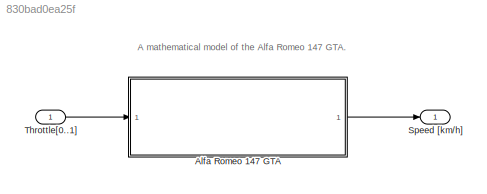
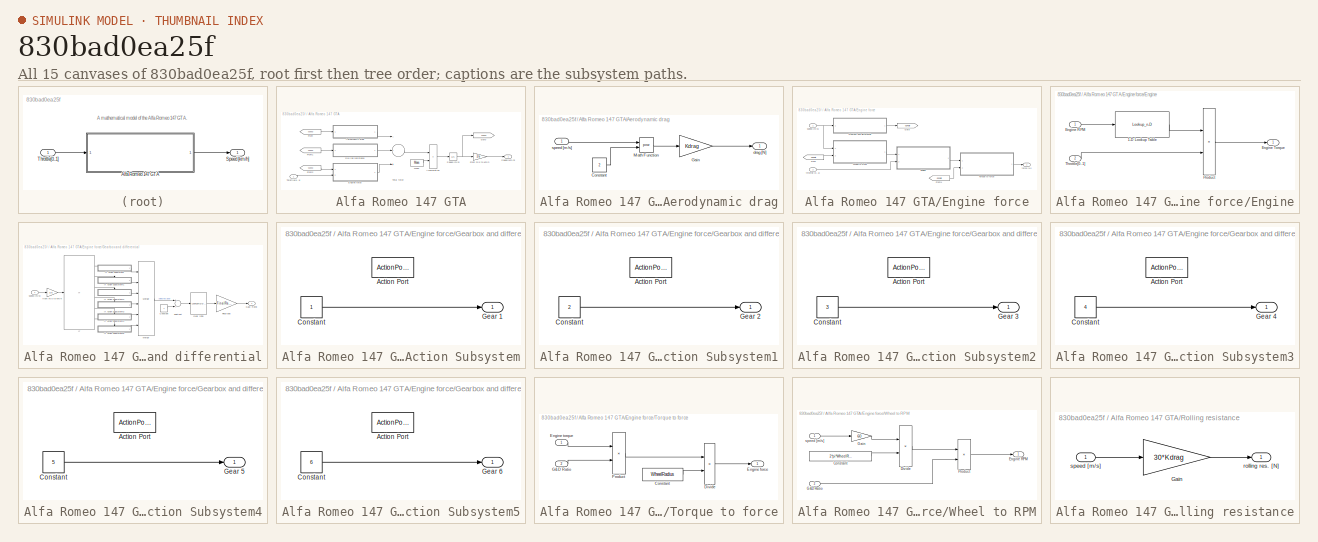
[diagram: thumbnail index - all 15 canvases of the model, root first then tree order]
MODEL slx_830bad0ea25f
KIND model
CONFIG PreLoadFcn = load('alfa147gta.mat')
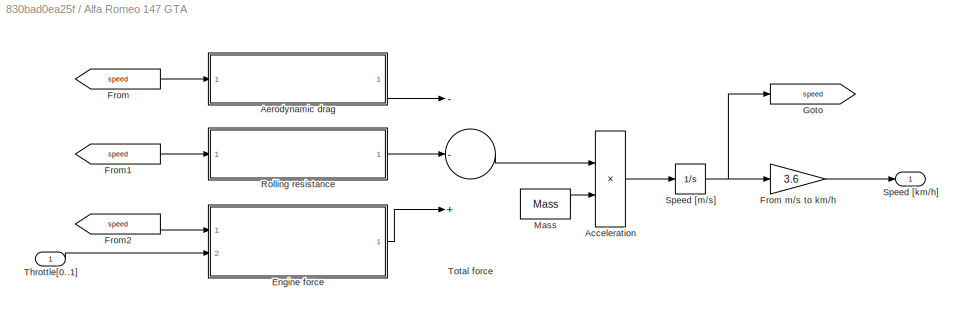
BLOCK [SubSystem] Alfa Romeo 147 GTA
  FunctionWithSeparateData = off
  MaskHideContents = off
  MinAlgLoopOccurrences = off
  Opaque = off
  Ports = [1, 1]
  PropExecContextOutsideSubsystem = off
  RTWSystemCode = Auto
  RequestExecContextInheritance = off
BLOCK [Product] Alfa Romeo 147 GTA/Acceleration
  InputSameDT = off
  Inputs = */
  OutDataTypeStr = Inherit: Inherit via internal rule
  Ports = [2, 1]
  RndMeth = Floor
  SaturateOnIntegerOverflow = off
BLOCK [SubSystem] Alfa Romeo 147 GTA/Aerodynamic drag
  FunctionWithSeparateData = off
  MaskHideContents = off
  MinAlgLoopOccurrences = off
  Opaque = off
  Ports = [1, 1]
  PropExecContextOutsideSubsystem = off
  RTWSystemCode = Auto
  RequestExecContextInheritance = off
BLOCK [Constant] Alfa Romeo 147 GTA/Aerodynamic drag/Constant
  Value = 2
BLOCK [Gain] Alfa Romeo 147 GTA/Aerodynamic drag/Gain
  Gain = Kdrag
  OutDataTypeStr = Inherit: Inherit via internal rule
  ParamDataTypeStr = Inherit: Inherit via internal rule
  SaturateOnIntegerOverflow = off
BLOCK [Math] Alfa Romeo 147 GTA/Aerodynamic drag/Math Function
  Operator = pow
  Ports = [2, 1]
BLOCK [Outport] Alfa Romeo 147 GTA/Aerodynamic drag/drag [N]
  IconDisplay = Port number
BLOCK [Inport] Alfa Romeo 147 GTA/Aerodynamic drag/speed [m//s]
  IconDisplay = Port number
BLOCK [SubSystem] Alfa Romeo 147 GTA/Engine force
  FunctionWithSeparateData = off
  MaskHideContents = off
  MinAlgLoopOccurrences = off
  Opaque = off
  Ports = [2, 1]
  PropExecContextOutsideSubsystem = off
  RTWSystemCode = Auto
  RequestExecContextInheritance = off
BLOCK [SubSystem] Alfa Romeo 147 GTA/Engine force/Engine
  FunctionWithSeparateData = off
  MaskHideContents = off
  MinAlgLoopOccurrences = off
  Opaque = off
  Ports = [2, 1]
  PropExecContextOutsideSubsystem = off
  RTWSystemCode = Auto
  RequestExecContextInheritance = off
BLOCK [Lookup_n-D] Alfa Romeo 147 GTA/Engine force/Engine/1-D Lookup Table
  BreakpointsForDimension1 = EngineRPM
  InterpMethod = Cubic spline
  NumberOfTableDimensions = 1
  Ports = [1, 1]
  RndMeth = Simplest
  Table = EngineTRQ
BLOCK [Inport] Alfa Romeo 147 GTA/Engine force/Engine/Engine RPM
  IconDisplay = Port number
BLOCK [Outport] Alfa Romeo 147 GTA/Engine force/Engine/Engine Torque
  IconDisplay = Port number
BLOCK [Product] Alfa Romeo 147 GTA/Engine force/Engine/Product
  InputSameDT = off
  OutDataTypeStr = Inherit: Inherit via internal rule
  Ports = [2, 1]
  RndMeth = Floor
  SaturateOnIntegerOverflow = off
BLOCK [Inport] Alfa Romeo 147 GTA/Engine force/Engine/Throttle[0..1]
  IconDisplay = Port number
  Port = 2
BLOCK [From] Alfa Romeo 147 GTA/Engine force/From
  GotoTag = GDRatio
BLOCK [From] Alfa Romeo 147 GTA/Engine force/From1
  GotoTag = GDRatio
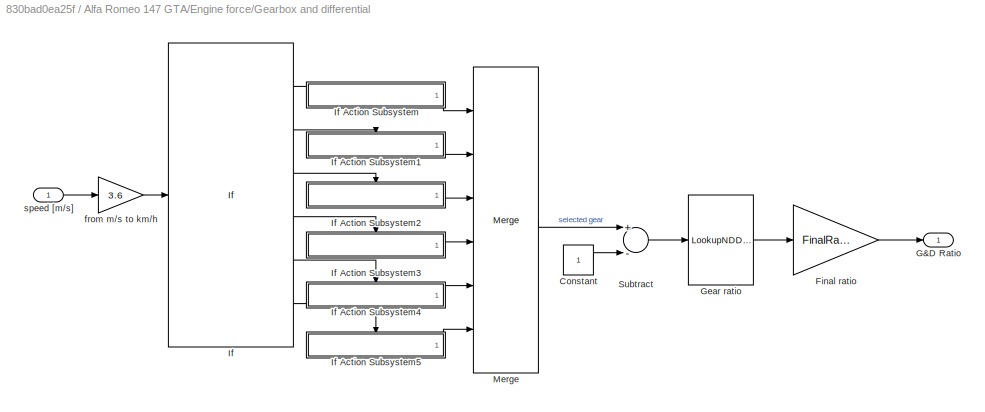
BLOCK [SubSystem] Alfa Romeo 147 GTA/Engine force/Gearbox and differential
  FunctionWithSeparateData = off
  MaskHideContents = off
  MinAlgLoopOccurrences = off
  Opaque = off
  Ports = [1, 1]
  PropExecContextOutsideSubsystem = off
  RTWSystemCode = Auto
  RequestExecContextInheritance = off
BLOCK [Constant] Alfa Romeo 147 GTA/Engine force/Gearbox and differential/Constant
BLOCK [Gain] Alfa Romeo 147 GTA/Engine force/Gearbox and differential/Final ratio
  Gain = FinalRatio
  OutDataTypeStr = Inherit: Inherit via internal rule
  ParamDataTypeStr = Inherit: Inherit via internal rule
  SaturateOnIntegerOverflow = off
BLOCK [Outport] Alfa Romeo 147 GTA/Engine force/Gearbox and differential/G&D Ratio
  IconDisplay = Port number
BLOCK [LookupNDDirect] Alfa Romeo 147 GTA/Engine force/Gearbox and differential/Gear ratio
  NumberOfTableDimensions = 1
  Ports = [1, 1]
  Table = GearRatio
BLOCK [If] Alfa Romeo 147 GTA/Engine force/Gearbox and differential/If
  ElseIfExpressions = u1 < 60, u1 < 86, u1 < 110, u1 < 130
  IfExpression = u1 < 39
  Ports = [1, 6]
BLOCK [SubSystem] Alfa Romeo 147 GTA/Engine force/Gearbox and differential/If Action Subsystem
  FunctionWithSeparateData = off
  MaskHideContents = off
  MinAlgLoopOccurrences = off
  Opaque = off
  Ports = [0, 1, 0, 0, 0, 0, 0, 1]
  PropExecContextOutsideSubsystem = off
  RTWSystemCode = Auto
  RequestExecContextInheritance = off
  TreatAsAtomicUnit = on
BLOCK [ActionPort] Alfa Romeo 147 GTA/Engine force/Gearbox and differential/If Action Subsystem/Action Port
  ActionType = then
BLOCK [Constant] Alfa Romeo 147 GTA/Engine force/Gearbox and differential/If Action Subsystem/Constant
BLOCK [Outport] Alfa Romeo 147 GTA/Engine force/Gearbox and differential/If Action Subsystem/Gear 1
  IconDisplay = Port number
  InitialOutput = 1
BLOCK [SubSystem] Alfa Romeo 147 GTA/Engine force/Gearbox and differential/If Action Subsystem1
  FunctionWithSeparateData = off
  MaskHideContents = off
  MinAlgLoopOccurrences = off
  Opaque = off
  Ports = [0, 1, 0, 0, 0, 0, 0, 1]
  PropExecContextOutsideSubsystem = off
  RTWSystemCode = Auto
  RequestExecContextInheritance = off
  TreatAsAtomicUnit = on
BLOCK [ActionPort] Alfa Romeo 147 GTA/Engine force/Gearbox and differential/If Action Subsystem1/Action Port
  ActionType = elseif
BLOCK [Constant] Alfa Romeo 147 GTA/Engine force/Gearbox and differential/If Action Subsystem1/Constant
  Value = 2
BLOCK [Outport] Alfa Romeo 147 GTA/Engine force/Gearbox and differential/If Action Subsystem1/Gear 2
  IconDisplay = Port number
  InitialOutput = 2
BLOCK [SubSystem] Alfa Romeo 147 GTA/Engine force/Gearbox and differential/If Action Subsystem2
  FunctionWithSeparateData = off
  MaskHideContents = off
  MinAlgLoopOccurrences = off
  Opaque = off
  Ports = [0, 1, 0, 0, 0, 0, 0, 1]
  PropExecContextOutsideSubsystem = off
  RTWSystemCode = Auto
  RequestExecContextInheritance = off
  TreatAsAtomicUnit = on
BLOCK [ActionPort] Alfa Romeo 147 GTA/Engine force/Gearbox and differential/If Action Subsystem2/Action Port
  ActionType = elseif
BLOCK [Constant] Alfa Romeo 147 GTA/Engine force/Gearbox and differential/If Action Subsystem2/Constant
  Value = 3
BLOCK [Outport] Alfa Romeo 147 GTA/Engine force/Gearbox and differential/If Action Subsystem2/Gear 3
  IconDisplay = Port number
  InitialOutput = 3
BLOCK [SubSystem] Alfa Romeo 147 GTA/Engine force/Gearbox and differential/If Action Subsystem3
  FunctionWithSeparateData = off
  MaskHideContents = off
  MinAlgLoopOccurrences = off
  Opaque = off
  Ports = [0, 1, 0, 0, 0, 0, 0, 1]
  PropExecContextOutsideSubsystem = off
  RTWSystemCode = Auto
  RequestExecContextInheritance = off
  TreatAsAtomicUnit = on
BLOCK [ActionPort] Alfa Romeo 147 GTA/Engine force/Gearbox and differential/If Action Subsystem3/Action Port
  ActionType = elseif
BLOCK [Constant] Alfa Romeo 147 GTA/Engine force/Gearbox and differential/If Action Subsystem3/Constant
  Value = 4
BLOCK [Outport] Alfa Romeo 147 GTA/Engine force/Gearbox and differential/If Action Subsystem3/Gear 4
  IconDisplay = Port number
  InitialOutput = 4
BLOCK [SubSystem] Alfa Romeo 147 GTA/Engine force/Gearbox and differential/If Action Subsystem4
  FunctionWithSeparateData = off
  MaskHideContents = off
  MinAlgLoopOccurrences = off
  Opaque = off
  Ports = [0, 1, 0, 0, 0, 0, 0, 1]
  PropExecContextOutsideSubsystem = off
  RTWSystemCode = Auto
  RequestExecContextInheritance = off
  TreatAsAtomicUnit = on
BLOCK [ActionPort] Alfa Romeo 147 GTA/Engine force/Gearbox and differential/If Action Subsystem4/Action Port
  ActionType = elseif
BLOCK [Constant] Alfa Romeo 147 GTA/Engine force/Gearbox and differential/If Action Subsystem4/Constant
  Value = 5
BLOCK [Outport] Alfa Romeo 147 GTA/Engine force/Gearbox and differential/If Action Subsystem4/Gear 5
  IconDisplay = Port number
  InitialOutput = 5
BLOCK [SubSystem] Alfa Romeo 147 GTA/Engine force/Gearbox and differential/If Action Subsystem5
  FunctionWithSeparateData = off
  MaskHideContents = off
  MinAlgLoopOccurrences = off
  Opaque = off
  Ports = [0, 1, 0, 0, 0, 0, 0, 1]
  PropExecContextOutsideSubsystem = off
  RTWSystemCode = Auto
  RequestExecContextInheritance = off
  TreatAsAtomicUnit = on
BLOCK [ActionPort] Alfa Romeo 147 GTA/Engine force/Gearbox and differential/If Action Subsystem5/Action Port
  ActionType = else
BLOCK [Constant] Alfa Romeo 147 GTA/Engine force/Gearbox and differential/If Action Subsystem5/Constant
  Value = 6
BLOCK [Outport] Alfa Romeo 147 GTA/Engine force/Gearbox and differential/If Action Subsystem5/Gear 6
  IconDisplay = Port number
  InitialOutput = 6
BLOCK [Merge] Alfa Romeo 147 GTA/Engine force/Gearbox and differential/Merge
  Inputs = 6
  Ports = [6, 1]
BLOCK [Sum] Alfa Romeo 147 GTA/Engine force/Gearbox and differential/Subtract
  InputSameDT = off
  Inputs = +-
  OutDataTypeStr = Inherit: Inherit via internal rule
  Ports = [2, 1]
  SaturateOnIntegerOverflow = off
BLOCK [Gain] Alfa Romeo 147 GTA/Engine force/Gearbox and differential/from m//s to km//h
  Gain = 3.6
  OutDataTypeStr = Inherit: Inherit via internal rule
  ParamDataTypeStr = Inherit: Inherit via internal rule
  SaturateOnIntegerOverflow = off
BLOCK [Inport] Alfa Romeo 147 GTA/Engine force/Gearbox and differential/speed [m//s]
  IconDisplay = Port number
BLOCK [Goto] Alfa Romeo 147 GTA/Engine force/Goto
  GotoTag = GDRatio
BLOCK [SubSystem] Alfa Romeo 147 GTA/Engine force/Torque to force
  FunctionWithSeparateData = off
  MaskHideContents = off
  MinAlgLoopOccurrences = off
  Opaque = off
  Ports = [2, 1]
  PropExecContextOutsideSubsystem = off
  RTWSystemCode = Auto
  RequestExecContextInheritance = off
BLOCK [Constant] Alfa Romeo 147 GTA/Engine force/Torque to force/Constant
  Value = WheelRadius
BLOCK [Product] Alfa Romeo 147 GTA/Engine force/Torque to force/Divide
  InputSameDT = off
  Inputs = */
  OutDataTypeStr = Inherit: Inherit via internal rule
  Ports = [2, 1]
  RndMeth = Floor
  SaturateOnIntegerOverflow = off
BLOCK [Outport] Alfa Romeo 147 GTA/Engine force/Torque to force/Engine force
  IconDisplay = Port number
BLOCK [Inport] Alfa Romeo 147 GTA/Engine force/Torque to force/Engine torque
  IconDisplay = Port number
BLOCK [Inport] Alfa Romeo 147 GTA/Engine force/Torque to force/G&D Ratio
  IconDisplay = Port number
  Port = 2
BLOCK [Product] Alfa Romeo 147 GTA/Engine force/Torque to force/Product
  InputSameDT = off
  OutDataTypeStr = Inherit: Inherit via internal rule
  Ports = [2, 1]
  RndMeth = Floor
  SaturateOnIntegerOverflow = off
BLOCK [SubSystem] Alfa Romeo 147 GTA/Engine force/Wheel to RPM
  FunctionWithSeparateData = off
  MaskHideContents = off
  MinAlgLoopOccurrences = off
  Opaque = off
  Ports = [2, 1]
  PropExecContextOutsideSubsystem = off
  RTWSystemCode = Auto
  RequestExecContextInheritance = off
BLOCK [Constant] Alfa Romeo 147 GTA/Engine force/Wheel to RPM/Constant
  Value = 2*pi*WheelRadius
BLOCK [Product] Alfa Romeo 147 GTA/Engine force/Wheel to RPM/Divide
  InputSameDT = off
  Inputs = */
  OutDataTypeStr = Inherit: Inherit via internal rule
  Ports = [2, 1]
  RndMeth = Floor
  SaturateOnIntegerOverflow = off
BLOCK [Outport] Alfa Romeo 147 GTA/Engine force/Wheel to RPM/Engine RPM
  IconDisplay = Port number
BLOCK [Inport] Alfa Romeo 147 GTA/Engine force/Wheel to RPM/G&D Ratio
  IconDisplay = Port number
  Port = 2
BLOCK [Gain] Alfa Romeo 147 GTA/Engine force/Wheel to RPM/Gain
  Gain = 60
  OutDataTypeStr = Inherit: Inherit via internal rule
  ParamDataTypeStr = Inherit: Inherit via internal rule
  SaturateOnIntegerOverflow = off
BLOCK [Product] Alfa Romeo 147 GTA/Engine force/Wheel to RPM/Product
  InputSameDT = off
  OutDataTypeStr = Inherit: Inherit via internal rule
  Ports = [2, 1]
  RndMeth = Floor
  SaturateOnIntegerOverflow = off
BLOCK [Inport] Alfa Romeo 147 GTA/Engine force/Wheel to RPM/speed [m//s]
  IconDisplay = Port number
BLOCK [Outport] Alfa Romeo 147 GTA/Engine force/force [N]
  IconDisplay = Port number
BLOCK [Inport] Alfa Romeo 147 GTA/Engine force/speed [m//s]
  IconDisplay = Port number
BLOCK [Inport] Alfa Romeo 147 GTA/Engine force/throttle [0..1]
  IconDisplay = Port number
  Port = 2
BLOCK [From] Alfa Romeo 147 GTA/From
  GotoTag = speed
BLOCK [Gain] Alfa Romeo 147 GTA/From m//s to km//h
  Gain = 3.6
  OutDataTypeStr = Inherit: Inherit via internal rule
  ParamDataTypeStr = Inherit: Inherit via internal rule
  SaturateOnIntegerOverflow = off
BLOCK [From] Alfa Romeo 147 GTA/From1
  GotoTag = speed
BLOCK [From] Alfa Romeo 147 GTA/From2
  GotoTag = speed
BLOCK [Goto] Alfa Romeo 147 GTA/Goto
  GotoTag = speed
BLOCK [Constant] Alfa Romeo 147 GTA/Mass
  Value = Mass
BLOCK [SubSystem] Alfa Romeo 147 GTA/Rolling resistance
  FunctionWithSeparateData = off
  MaskHideContents = off
  MinAlgLoopOccurrences = off
  Opaque = off
  Ports = [1, 1]
  PropExecContextOutsideSubsystem = off
  RTWSystemCode = Auto
  RequestExecContextInheritance = off
BLOCK [Gain] Alfa Romeo 147 GTA/Rolling resistance/Gain
  Gain = 30*Kdrag
  OutDataTypeStr = Inherit: Inherit via internal rule
  ParamDataTypeStr = Inherit: Inherit via internal rule
  SaturateOnIntegerOverflow = off
BLOCK [Outport] Alfa Romeo 147 GTA/Rolling resistance/rolling res. [N]
  IconDisplay = Port number
BLOCK [Inport] Alfa Romeo 147 GTA/Rolling resistance/speed [m//s]
  IconDisplay = Port number
BLOCK [Outport] Alfa Romeo 147 GTA/Speed [km//h]
  IconDisplay = Port number
BLOCK [Integrator] Alfa Romeo 147 GTA/Speed [m//s]
  Ports = [1, 1]
BLOCK [Inport] Alfa Romeo 147 GTA/Throttle[0..1]
  IconDisplay = Port number
BLOCK [Sum] Alfa Romeo 147 GTA/Total force
  InputSameDT = off
  Inputs = --+
  OutDataTypeStr = Inherit: Inherit via internal rule
  Ports = [3, 1]
  SaturateOnIntegerOverflow = off
BLOCK [Outport] Speed [km//h]
  IconDisplay = Port number
BLOCK [Inport] Throttle[0..1]
  IconDisplay = Port number
ANNOTATION (root): A mathematical model of the Alfa Romeo 147 GTA.
LINE Alfa Romeo 147 GTA/Acceleration:1 -> Alfa Romeo 147 GTA/Speed [m//s]:1
LINE Alfa Romeo 147 GTA/Aerodynamic drag/Constant:1 -> Alfa Romeo 147 GTA/Aerodynamic drag/Math Function:2
LINE Alfa Romeo 147 GTA/Aerodynamic drag/Gain:1 -> Alfa Romeo 147 GTA/Aerodynamic drag/drag [N]:1
LINE Alfa Romeo 147 GTA/Aerodynamic drag/Math Function:1 -> Alfa Romeo 147 GTA/Aerodynamic drag/Gain:1
LINE Alfa Romeo 147 GTA/Aerodynamic drag/speed [m//s]:1 -> Alfa Romeo 147 GTA/Aerodynamic drag/Math Function:1
LINE Alfa Romeo 147 GTA/Aerodynamic drag:1 -> Alfa Romeo 147 GTA/Total force:1
LINE Alfa Romeo 147 GTA/Engine force/Engine/1-D Lookup Table:1 -> Alfa Romeo 147 GTA/Engine force/Engine/Product:1
LINE Alfa Romeo 147 GTA/Engine force/Engine/Engine RPM:1 -> Alfa Romeo 147 GTA/Engine force/Engine/1-D Lookup Table:1
LINE Alfa Romeo 147 GTA/Engine force/Engine/Product:1 -> Alfa Romeo 147 GTA/Engine force/Engine/Engine Torque:1
LINE Alfa Romeo 147 GTA/Engine force/Engine/Throttle[0..1]:1 -> Alfa Romeo 147 GTA/Engine force/Engine/Product:2
LINE Alfa Romeo 147 GTA/Engine force/Engine:1 -> Alfa Romeo 147 GTA/Engine force/Torque to force:1
LINE Alfa Romeo 147 GTA/Engine force/From1:1 -> Alfa Romeo 147 GTA/Engine force/Torque to force:2
LINE Alfa Romeo 147 GTA/Engine force/From:1 -> Alfa Romeo 147 GTA/Engine force/Wheel to RPM:2
LINE Alfa Romeo 147 GTA/Engine force/Gearbox and differential/Constant:1 -> Alfa Romeo 147 GTA/Engine force/Gearbox and differential/Subtract:2
LINE Alfa Romeo 147 GTA/Engine force/Gearbox and differential/Final ratio:1 -> Alfa Romeo 147 GTA/Engine force/Gearbox and differential/G&D Ratio:1
LINE Alfa Romeo 147 GTA/Engine force/Gearbox and differential/Gear ratio:1 -> Alfa Romeo 147 GTA/Engine force/Gearbox and differential/Final ratio:1
LINE Alfa Romeo 147 GTA/Engine force/Gearbox and differential/If Action Subsystem/Constant:1 -> Alfa Romeo 147 GTA/Engine force/Gearbox and differential/If Action Subsystem/Gear 1:1
LINE Alfa Romeo 147 GTA/Engine force/Gearbox and differential/If Action Subsystem1/Constant:1 -> Alfa Romeo 147 GTA/Engine force/Gearbox and differential/If Action Subsystem1/Gear 2:1
LINE Alfa Romeo 147 GTA/Engine force/Gearbox and differential/If Action Subsystem1:1 -> Alfa Romeo 147 GTA/Engine force/Gearbox and differential/Merge:2
LINE Alfa Romeo 147 GTA/Engine force/Gearbox and differential/If Action Subsystem2/Constant:1 -> Alfa Romeo 147 GTA/Engine force/Gearbox and differential/If Action Subsystem2/Gear 3:1
LINE Alfa Romeo 147 GTA/Engine force/Gearbox and differential/If Action Subsystem2:1 -> Alfa Romeo 147 GTA/Engine force/Gearbox and differential/Merge:3
LINE Alfa Romeo 147 GTA/Engine force/Gearbox and differential/If Action Subsystem3/Constant:1 -> Alfa Romeo 147 GTA/Engine force/Gearbox and differential/If Action Subsystem3/Gear 4:1
LINE Alfa Romeo 147 GTA/Engine force/Gearbox and differential/If Action Subsystem3:1 -> Alfa Romeo 147 GTA/Engine force/Gearbox and differential/Merge:4
LINE Alfa Romeo 147 GTA/Engine force/Gearbox and differential/If Action Subsystem4/Constant:1 -> Alfa Romeo 147 GTA/Engine force/Gearbox and differential/If Action Subsystem4/Gear 5:1
LINE Alfa Romeo 147 GTA/Engine force/Gearbox and differential/If Action Subsystem4:1 -> Alfa Romeo 147 GTA/Engine force/Gearbox and differential/Merge:5
LINE Alfa Romeo 147 GTA/Engine force/Gearbox and differential/If Action Subsystem5/Constant:1 -> Alfa Romeo 147 GTA/Engine force/Gearbox and differential/If Action Subsystem5/Gear 6:1
LINE Alfa Romeo 147 GTA/Engine force/Gearbox and differential/If Action Subsystem5:1 -> Alfa Romeo 147 GTA/Engine force/Gearbox and differential/Merge:6
LINE Alfa Romeo 147 GTA/Engine force/Gearbox and differential/If Action Subsystem:1 -> Alfa Romeo 147 GTA/Engine force/Gearbox and differential/Merge:1
LINE Alfa Romeo 147 GTA/Engine force/Gearbox and differential/If:1 -> Alfa Romeo 147 GTA/Engine force/Gearbox and differential/If Action Subsystem:ifaction
LINE Alfa Romeo 147 GTA/Engine force/Gearbox and differential/If:2 -> Alfa Romeo 147 GTA/Engine force/Gearbox and differential/If Action Subsystem1:ifaction
LINE Alfa Romeo 147 GTA/Engine force/Gearbox and differential/If:3 -> Alfa Romeo 147 GTA/Engine force/Gearbox and differential/If Action Subsystem2:ifaction
LINE Alfa Romeo 147 GTA/Engine force/Gearbox and differential/If:4 -> Alfa Romeo 147 GTA/Engine force/Gearbox and differential/If Action Subsystem3:ifaction
LINE Alfa Romeo 147 GTA/Engine force/Gearbox and differential/If:5 -> Alfa Romeo 147 GTA/Engine force/Gearbox and differential/If Action Subsystem4:ifaction
LINE Alfa Romeo 147 GTA/Engine force/Gearbox and differential/If:6 -> Alfa Romeo 147 GTA/Engine force/Gearbox and differential/If Action Subsystem5:ifaction
LINE Alfa Romeo 147 GTA/Engine force/Gearbox and differential/Merge:1 -> Alfa Romeo 147 GTA/Engine force/Gearbox and differential/Subtract:1
LINE Alfa Romeo 147 GTA/Engine force/Gearbox and differential/Subtract:1 -> Alfa Romeo 147 GTA/Engine force/Gearbox and differential/Gear ratio:1
LINE Alfa Romeo 147 GTA/Engine force/Gearbox and differential/from m//s to km//h:1 -> Alfa Romeo 147 GTA/Engine force/Gearbox and differential/If:1
LINE Alfa Romeo 147 GTA/Engine force/Gearbox and differential/speed [m//s]:1 -> Alfa Romeo 147 GTA/Engine force/Gearbox and differential/from m//s to km//h:1
LINE Alfa Romeo 147 GTA/Engine force/Gearbox and differential:1 -> Alfa Romeo 147 GTA/Engine force/Goto:1
LINE Alfa Romeo 147 GTA/Engine force/Torque to force/Constant:1 -> Alfa Romeo 147 GTA/Engine force/Torque to force/Divide:2
LINE Alfa Romeo 147 GTA/Engine force/Torque to force/Divide:1 -> Alfa Romeo 147 GTA/Engine force/Torque to force/Engine force:1
LINE Alfa Romeo 147 GTA/Engine force/Torque to force/Engine torque:1 -> Alfa Romeo 147 GTA/Engine force/Torque to force/Product:1
LINE Alfa Romeo 147 GTA/Engine force/Torque to force/G&D Ratio:1 -> Alfa Romeo 147 GTA/Engine force/Torque to force/Product:2
LINE Alfa Romeo 147 GTA/Engine force/Torque to force/Product:1 -> Alfa Romeo 147 GTA/Engine force/Torque to force/Divide:1
LINE Alfa Romeo 147 GTA/Engine force/Torque to force:1 -> Alfa Romeo 147 GTA/Engine force/force [N]:1
LINE Alfa Romeo 147 GTA/Engine force/Wheel to RPM/Constant:1 -> Alfa Romeo 147 GTA/Engine force/Wheel to RPM/Divide:2
LINE Alfa Romeo 147 GTA/Engine force/Wheel to RPM/Divide:1 -> Alfa Romeo 147 GTA/Engine force/Wheel to RPM/Product:1
LINE Alfa Romeo 147 GTA/Engine force/Wheel to RPM/G&D Ratio:1 -> Alfa Romeo 147 GTA/Engine force/Wheel to RPM/Product:2
LINE Alfa Romeo 147 GTA/Engine force/Wheel to RPM/Gain:1 -> Alfa Romeo 147 GTA/Engine force/Wheel to RPM/Divide:1
LINE Alfa Romeo 147 GTA/Engine force/Wheel to RPM/Product:1 -> Alfa Romeo 147 GTA/Engine force/Wheel to RPM/Engine RPM:1
LINE Alfa Romeo 147 GTA/Engine force/Wheel to RPM/speed [m//s]:1 -> Alfa Romeo 147 GTA/Engine force/Wheel to RPM/Gain:1
LINE Alfa Romeo 147 GTA/Engine force/Wheel to RPM:1 -> Alfa Romeo 147 GTA/Engine force/Engine:1
NET Alfa Romeo 147 GTA/Engine force/speed [m//s]:1 -> Alfa Romeo 147 GTA/Engine force/Gearbox and differential:1, Alfa Romeo 147 GTA/Engine force/Wheel to RPM:1
LINE Alfa Romeo 147 GTA/Engine force/throttle [0..1]:1 -> Alfa Romeo 147 GTA/Engine force/Engine:2
LINE Alfa Romeo 147 GTA/Engine force:1 -> Alfa Romeo 147 GTA/Total force:3
LINE Alfa Romeo 147 GTA/From m//s to km//h:1 -> Alfa Romeo 147 GTA/Speed [km//h]:1
LINE Alfa Romeo 147 GTA/From1:1 -> Alfa Romeo 147 GTA/Rolling resistance:1
LINE Alfa Romeo 147 GTA/From2:1 -> Alfa Romeo 147 GTA/Engine force:1
LINE Alfa Romeo 147 GTA/From:1 -> Alfa Romeo 147 GTA/Aerodynamic drag:1
LINE Alfa Romeo 147 GTA/Mass:1 -> Alfa Romeo 147 GTA/Acceleration:2
LINE Alfa Romeo 147 GTA/Rolling resistance/Gain:1 -> Alfa Romeo 147 GTA/Rolling resistance/rolling res. [N]:1
LINE Alfa Romeo 147 GTA/Rolling resistance/speed [m//s]:1 -> Alfa Romeo 147 GTA/Rolling resistance/Gain:1
LINE Alfa Romeo 147 GTA/Rolling resistance:1 -> Alfa Romeo 147 GTA/Total force:2
NET Alfa Romeo 147 GTA/Speed [m//s]:1 -> Alfa Romeo 147 GTA/From m//s to km//h:1, Alfa Romeo 147 GTA/Goto:1
LINE Alfa Romeo 147 GTA/Throttle[0..1]:1 -> Alfa Romeo 147 GTA/Engine force:2
LINE Alfa Romeo 147 GTA/Total force:1 -> Alfa Romeo 147 GTA/Acceleration:1
LINE Alfa Romeo 147 GTA:1 -> Speed [km//h]:1
LINE Throttle[0..1]:1 -> Alfa Romeo 147 GTA:1
note: NET lines group one-source signal fan-out (src -> all destinations, sorted); 1:1 wires keep LINE
